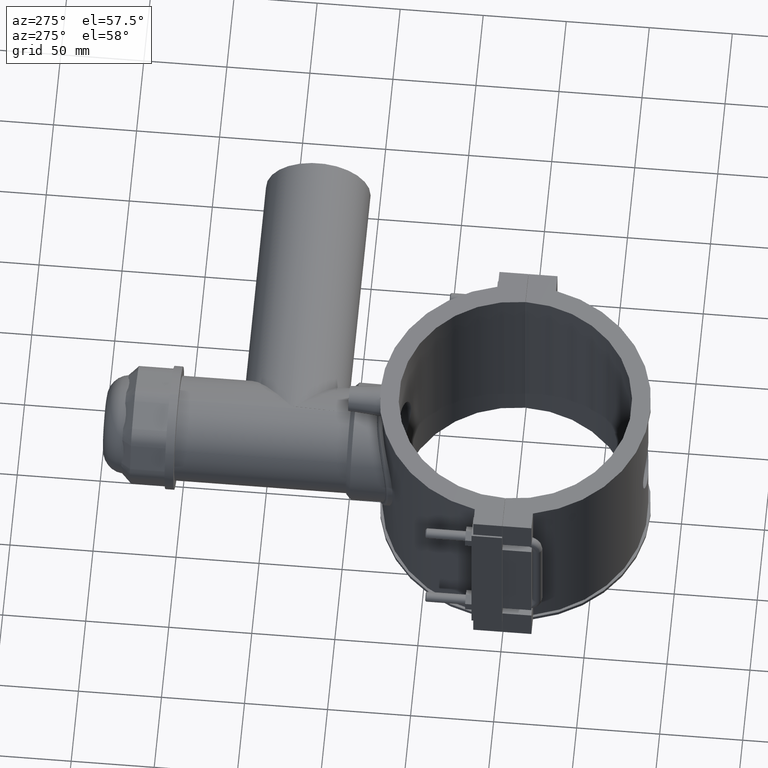
[diagram: clean part render]
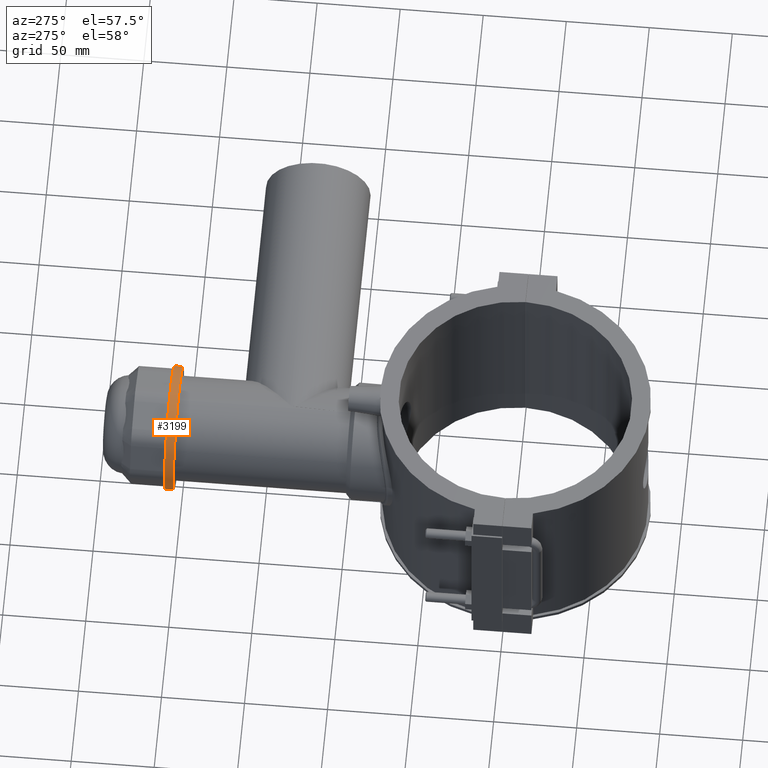
[diagram: same view with one face highlighted and labeled with its STEP entity id]
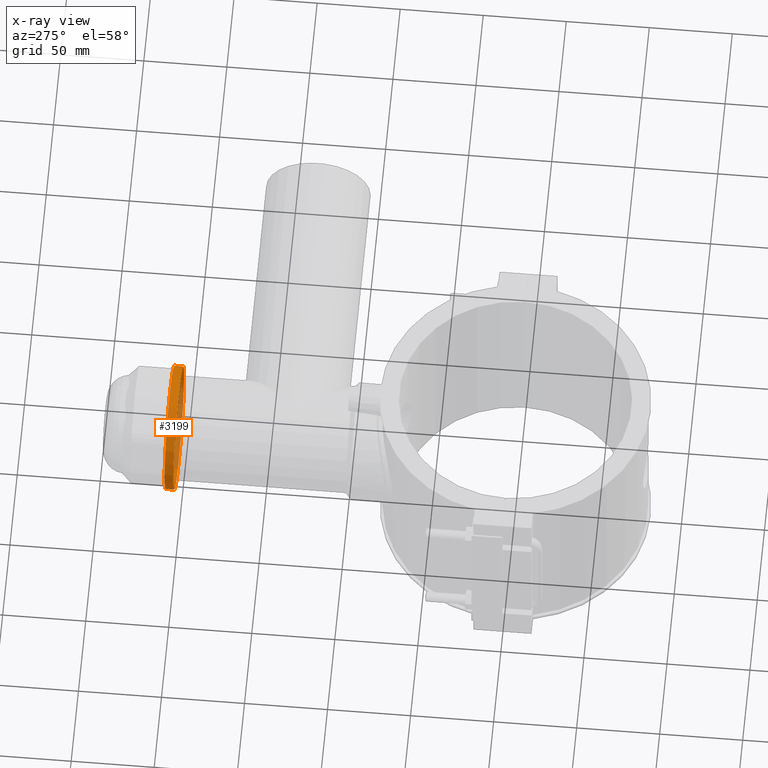
[diagram: x-ray of the same camera — body ghosted, the highlighted face saturated]
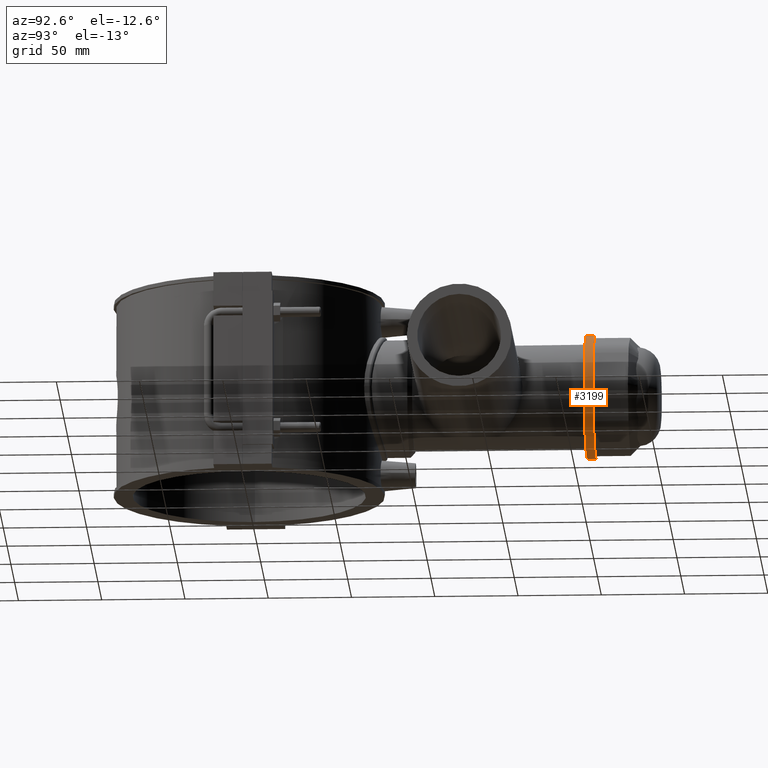
[diagram: same view with one face highlighted and labeled with its STEP entity id]
A machine part, auxiliary view. The second image highlights one B-rep face of the part: STEP entity #3199.
The next image is the same camera in x-ray: the body ghosted, the highlighted face saturated — about 27% of this face is hidden behind the body in this view.
A second angle (auxiliary view) of the same face is appended — the face is thin or edge-on in the first view.
In plain terms, the highlighted cylindrical surface (bore or boss wall) has radius 37.1 mm, axis along (0, 1, 0).
Its self-contained STEP definition (entity closure, byte-faithful):
#627=FACE_BOUND('',#1032,.T.);
#739=CYLINDRICAL_SURFACE('',#3434,37.1);
#827=FACE_OUTER_BOUND('',#1031,.T.);
#1031=EDGE_LOOP('',(#2326));
#1032=EDGE_LOOP('',(#2327));
#1252=CIRCLE('',#3429,37.1);
#1254=CIRCLE('',#3433,37.1);
#1403=VERTEX_POINT('',#5153);
#1405=VERTEX_POINT('',#5159);
#1752=EDGE_CURVE('',#1403,#1403,#1252,.T.);
#1754=EDGE_CURVE('',#1405,#1405,#1254,.T.);
#2326=ORIENTED_EDGE('',*,*,#1754,.T.);
#2327=ORIENTED_EDGE('',*,*,#1752,.F.);
#3199=ADVANCED_FACE('',(#827,#627),#739,.T.);
#3429=AXIS2_PLACEMENT_3D('',#5154,#3886,#3887);
#3433=AXIS2_PLACEMENT_3D('',#5160,#3894,#3895);
#3434=AXIS2_PLACEMENT_3D('',#5161,#3896,#3897);
#3886=DIRECTION('center_axis',(0.,1.,3.06161699786838E-16));
#3887=DIRECTION('ref_axis',(1.,0.,0.));
#3894=DIRECTION('center_axis',(0.,1.,3.06161699786838E-16));
#3895=DIRECTION('ref_axis',(1.,0.,0.));
#3896=DIRECTION('center_axis',(0.,1.,3.06161699786838E-16));
#3897=DIRECTION('ref_axis',(0.,0.,1.));
#5153=CARTESIAN_POINT('',(0.,208.06,37.1));
#5154=CARTESIAN_POINT('Origin',(0.,208.06,4.22686842725709E-14));
#5159=CARTESIAN_POINT('',(0.,202.75,37.1));
#5160=CARTESIAN_POINT('Origin',(0.,202.75,4.06429656467028E-14));
#5161=CARTESIAN_POINT('Origin',(0.,205.405,4.14558249596369E-14));